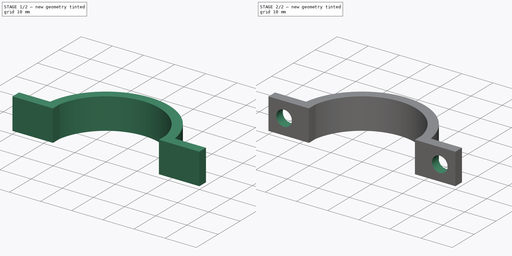
[diagram: build sequence overview — one tinted view per stage of 2, left to right]
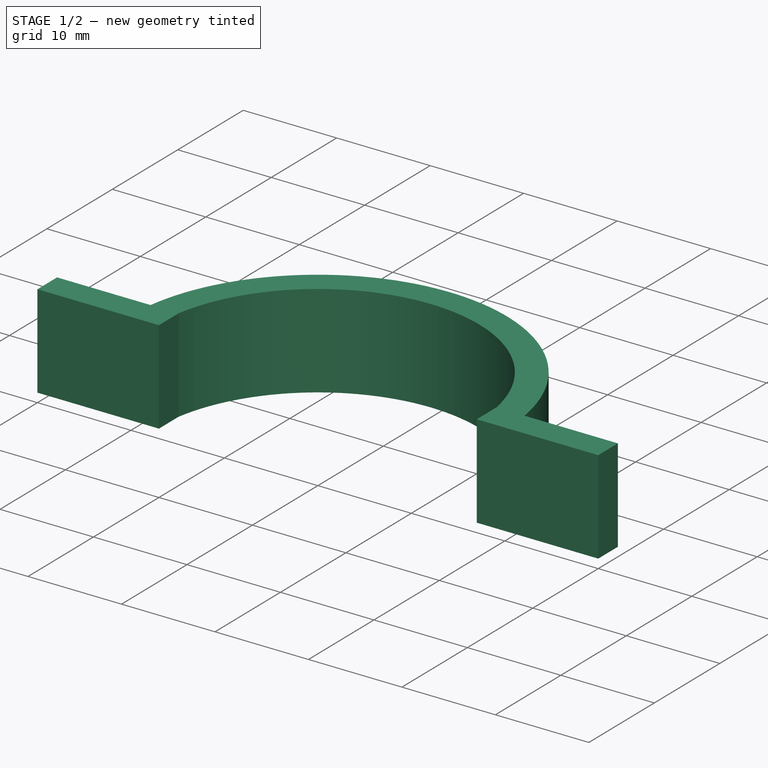
[diagram: stage 1 of 2 — iso view after this stage's code; geometry added in this stage tinted green]
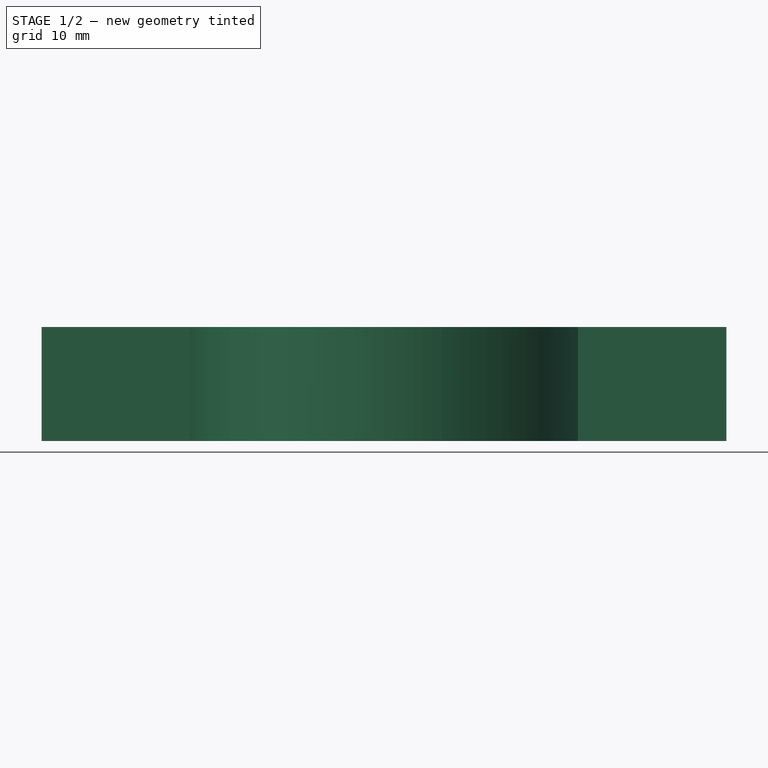
[diagram: stage 1 of 2 — front view after this stage's code; geometry added in this stage tinted green]
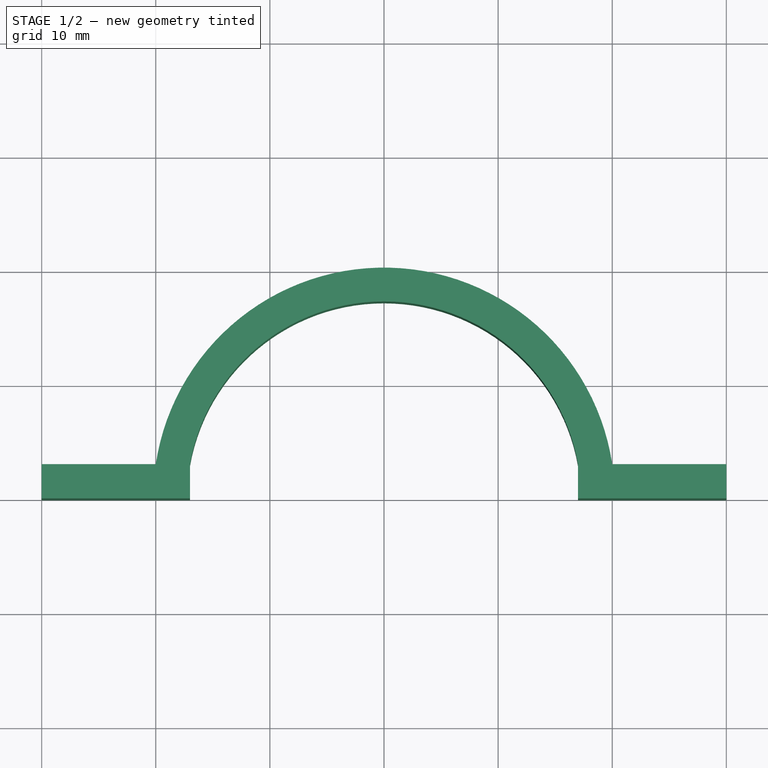
[diagram: stage 1 of 2 — top view after this stage's code; geometry added in this stage tinted green]
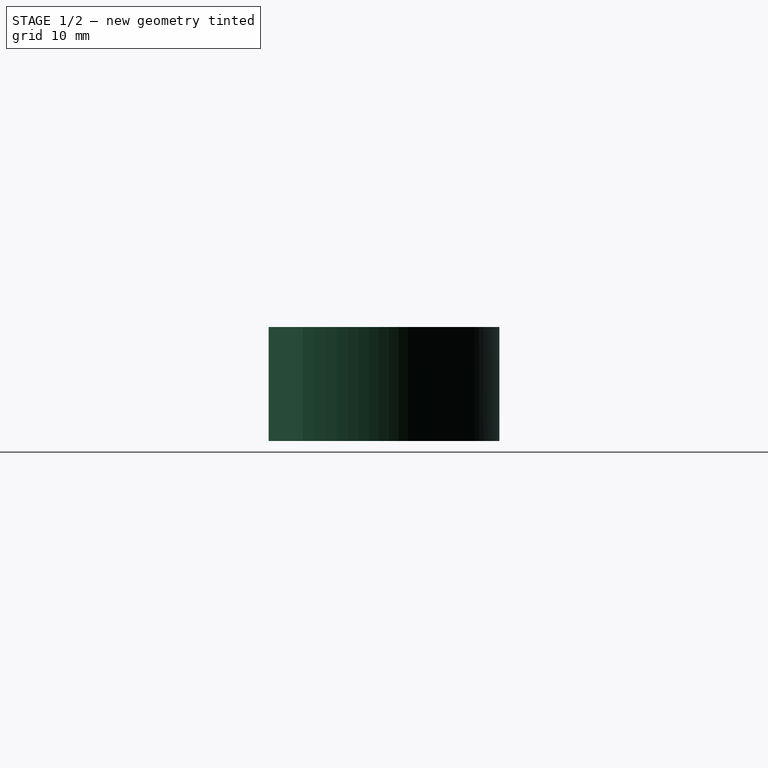
[diagram: stage 1 of 2 — right view after this stage's code; geometry added in this stage tinted green]
FCSTD DOCUMENT  (FreeCAD 1.0R39319 (Git))
Label: Clamp
License: All rights reserved
LicenseURL: https://en.wikipedia.org/wiki/All_rights_reserved
objects: Sketcher::SketchObject×2, PartDesign::Pad×1, PartDesign::Pocket×1, PartDesign::Body×1
note: 11 computed .brp shape members not serialized (recipe doc carries the construction recipe); baked Part::Feature solids carry a one-line shape summary decoded from their .brp

FEATURE [Sketcher::SketchObject] Sketch
  ArcFitTolerance = 1e-06
  AttachmentSupport = -> [XY_Plane]
  FullyConstrained = true
  MakeInternals = false
  MapMode = 5
  sketch-geometry (11):
    g0: ArcOfCircle CenterX=-1.75e-14 CenterY=-9.4e-15 CenterZ=0 NormalX=0 NormalY=0 NormalZ=1 AngleXU=0 Radius=20.2237 StartAngle=0.14889 EndAngle=2.9927
    g1: LineSegment StartX=-17 StartY=2.7e-15 StartZ=0 EndX=-30 EndY=2.7e-15 EndZ=0
    g2: LineSegment StartX=-30 StartY=2.7e-15 StartZ=0 EndX=-30 EndY=3 EndZ=0
    g3: LineSegment StartX=-30 StartY=3 StartZ=0 EndX=-20 EndY=3 EndZ=0
    g4: LineSegment StartX=-17 StartY=3 StartZ=0 EndX=-17 EndY=2.7e-15 EndZ=0
    g5: LineSegment StartX=30 StartY=3 StartZ=0 EndX=20 EndY=3 EndZ=0
    g6: LineSegment StartX=20 StartY=3 StartZ=0 EndX=20 EndY=3 EndZ=0
    g7: LineSegment StartX=17 StartY=3 StartZ=0 EndX=17 EndY=9.8e-15 EndZ=0
    g8: LineSegment StartX=17 StartY=9.8e-15 StartZ=0 EndX=30 EndY=9.8e-15 EndZ=0
    g9: LineSegment StartX=30 StartY=9.8e-15 StartZ=0 EndX=30 EndY=3 EndZ=0
    g10: ArcOfCircle CenterX=-1.75e-14 CenterY=-9.4e-15 CenterZ=0 NormalX=0 NormalY=0 NormalZ=1 AngleXU=0 Radius=17.2627 StartAngle=0.174672 EndAngle=2.96692
  constraints (33):
    c: Coincident(g0,g-1)
    c: PointOnObject(g1,g-1)
    c: Horizontal(g1)
    c: Coincident(g2,g1)
    c: Vertical(g2)
    c: Horizontal(g3)
    c: Coincident(g3,g2)
    c: Vertical(g4)
    c: Coincident(g4,g1)
    c: Horizontal(g8)
    c: Coincident(g9,g8)
    c: Vertical(g9)
    c: Horizontal(g5)
    c: Coincident(g5,g9)
    c: Coincident(g6,g5)
    c: Horizontal(g6)
    c: Vertical(g7)
    c: Coincident(g7,g8)
    c: Equal(g3,g5)
    c: Equal(g9,g2)
    c: Equal(g1,g8)
    c: Coincident(g10,g0)
    c: Coincident(g0,g3)
    c: Coincident(g0,g6)
    c: Coincident(g7,g10)
    c: Coincident(g4,g10)
    c: PointOnObject(g8,g-1)
    c: Distance(g4,g0) = 3
    c: DistanceX(g5,g5) = 10
    c: DistanceY(g9,g9) = 3
    c: Distance(g9,g2) = 60
    c: DistanceY(g4,g4) = 3
    c: DistanceY(g7,g7) = 3
FEATURE [PartDesign::Pad] Pad
  Direction = (0,0,1)
  Length = 10
  Length2 = 10
  Profile = -> Sketch
  ReferenceAxis = -> Sketch [N_Axis]
  Refine = true
  Suppressed = false
  Type = 0
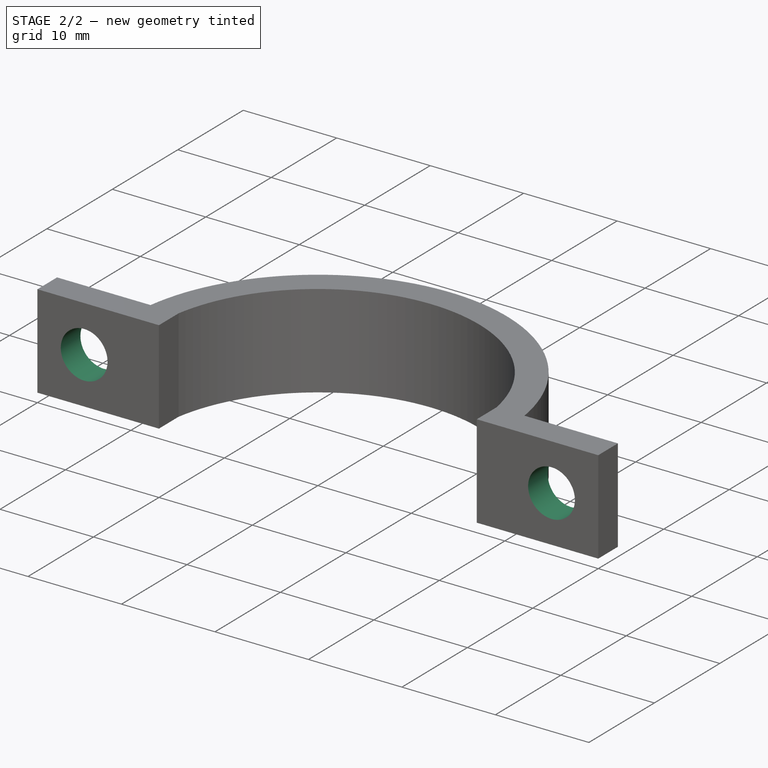
[diagram: stage 2 of 2 — iso view after this stage's code; geometry added in this stage tinted green]
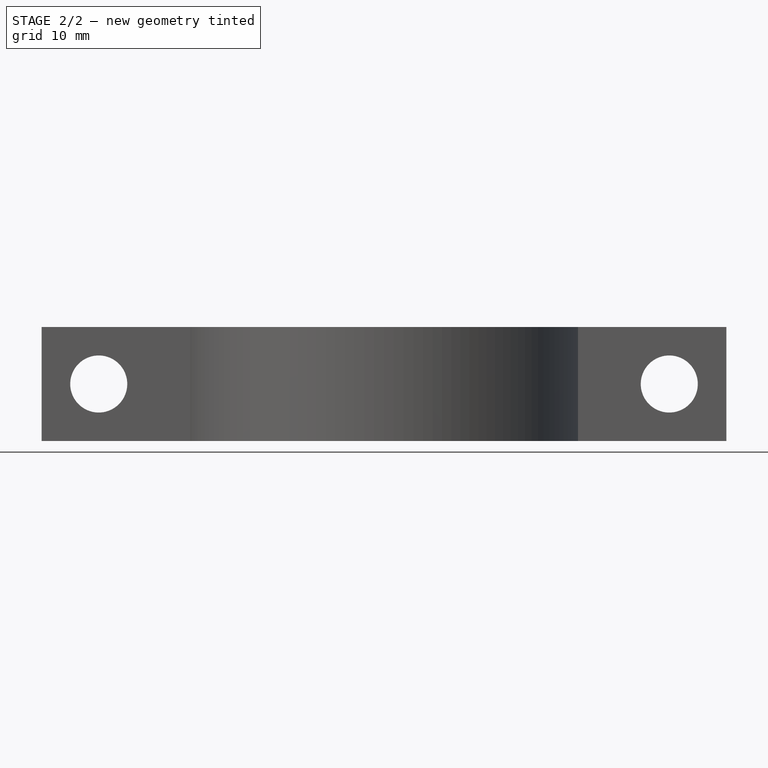
[diagram: stage 2 of 2 — front view after this stage's code; geometry added in this stage tinted green]
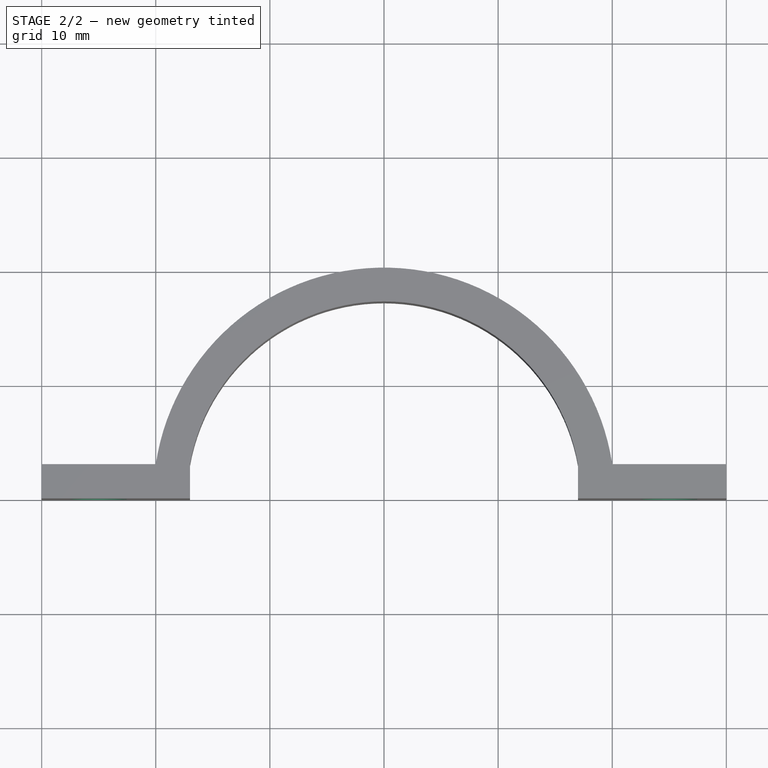
[diagram: stage 2 of 2 — top view after this stage's code; geometry added in this stage tinted green]
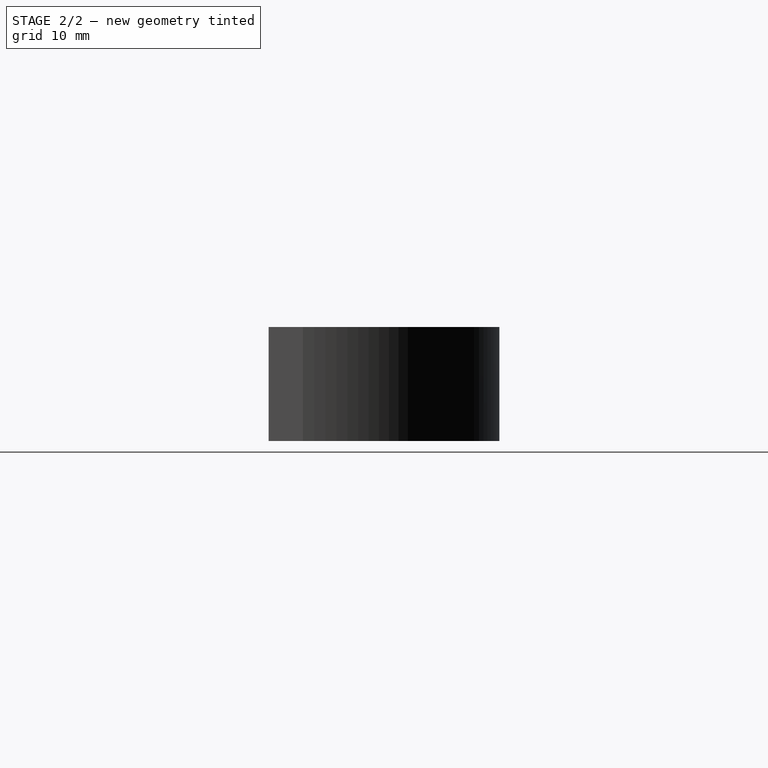
[diagram: stage 2 of 2 — right view after this stage's code; geometry added in this stage tinted green]
FEATURE [Sketcher::SketchObject] Sketch001
  ArcFitTolerance = 1e-06
  AttachmentSupport = -> [Pad]
  ExternalGeometry = -> [Pad]
  FullyConstrained = true
  MakeInternals = false
  MapMode = 5
  Placement = pos=(0,3,0) rot=(0,0.707107,0.707107;3.14159rad)
  sketch-geometry (2):
    g0: Circle CenterX=-25 CenterY=5 CenterZ=0 NormalX=0 NormalY=0 NormalZ=1 AngleXU=0 Radius=2.5
    g1: Circle CenterX=25 CenterY=5 CenterZ=0 NormalX=0 NormalY=0 NormalZ=1 AngleXU=0 Radius=2.5
  constraints (4):
    c: Symmetric(g-4,g-3,g0)
    c: Symmetric(g-5,g-6,g1)
    c: Diameter(g0) = 5
    c: Diameter(g1) = 5
FEATURE [PartDesign::Pocket] Pocket
  BaseFeature = -> Pad
  Direction = (0,-1,2e-16)
  Length = 5
  Length2 = 5
  Profile = -> Sketch001
  ReferenceAxis = -> Sketch001 [N_Axis]
  Refine = true
  Suppressed = false
  Type = 1
FEATURE [PartDesign::Body] Body
  AllowCompound = false
  Group = -> [Sketch,Pad,Sketch001,Pocket]
  Origin = -> Origin
  Tip = -> Pocket
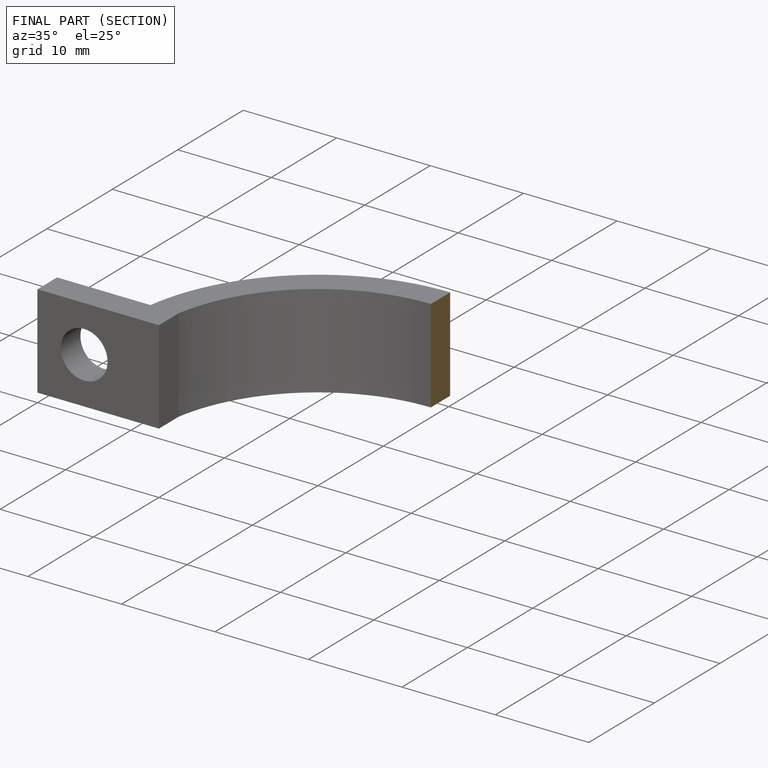
[diagram: finished part — half-section view (interior)]
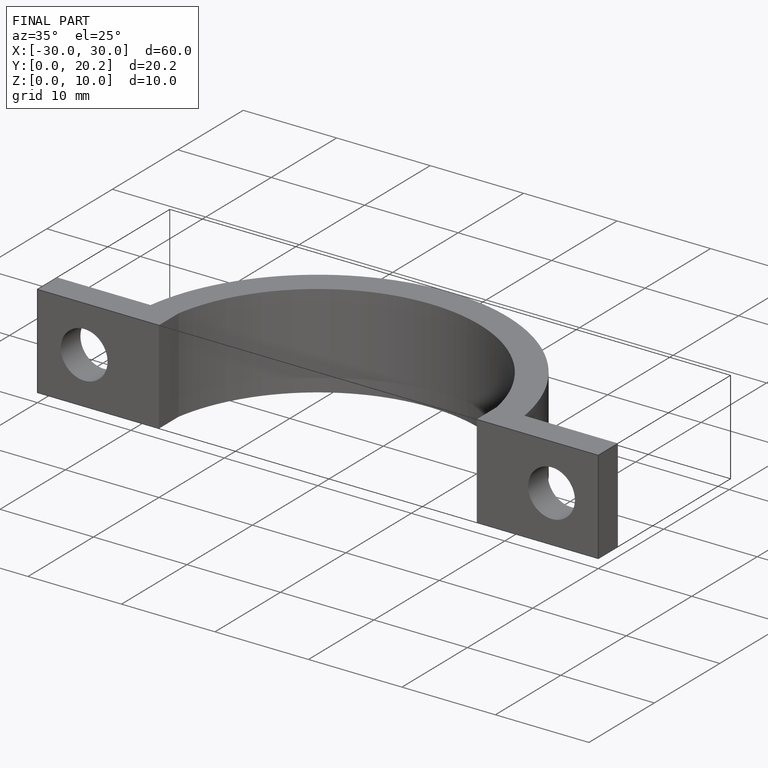
[diagram: finished part — iso view with bounding-box wireframe]
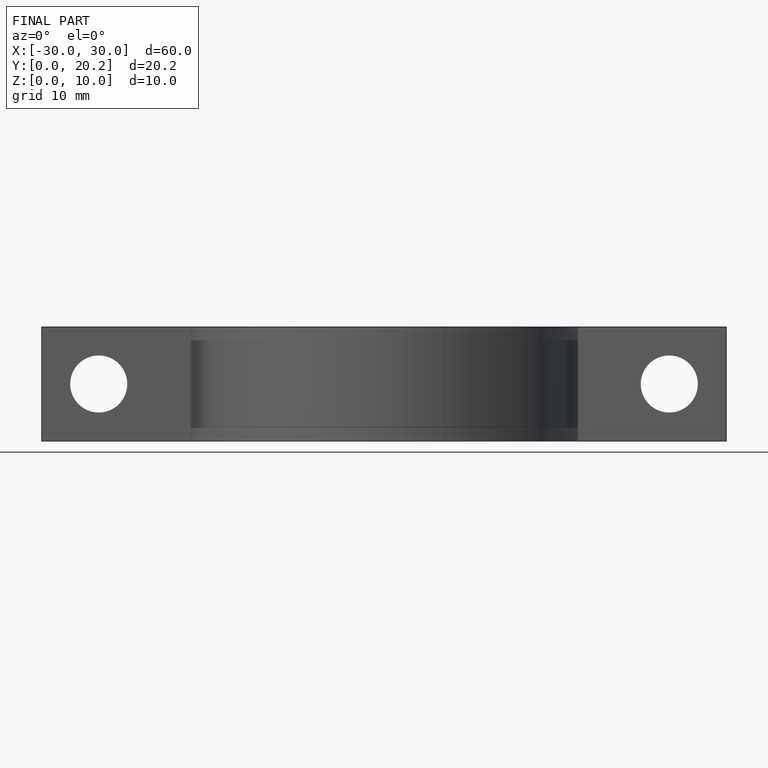
[diagram: finished part — front view with bounding-box wireframe]
